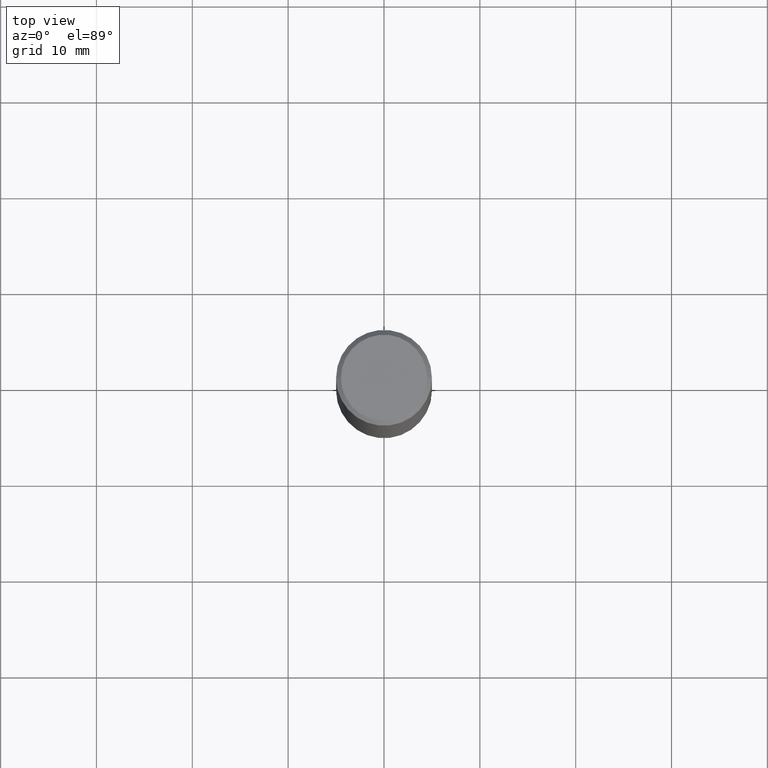
[diagram: clean part render]
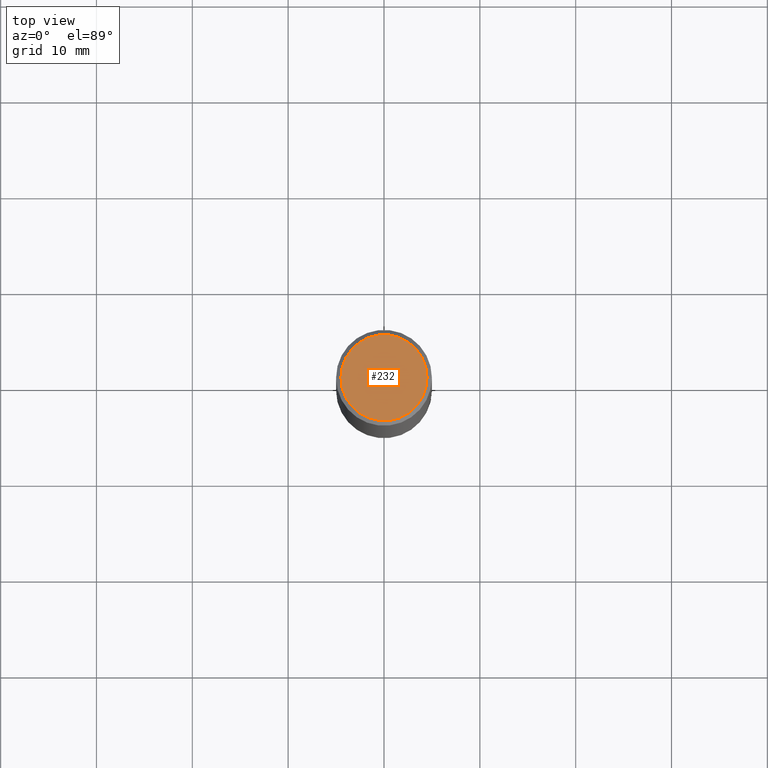
[diagram: same view with one face highlighted and labeled with its STEP entity id]
A machine part, top view. The second image highlights one B-rep face of the part: STEP entity #232.
In plain terms, the highlighted planar face has unit normal (0, -0, -1).
Its self-contained STEP definition (entity closure, byte-faithful):
#13 = ORIENTED_EDGE ( 'NONE', *, *, #112, .T. ) ;
#36 = DIRECTION ( 'NONE',  ( 2.438088387897960049E-29, -3.491481338843145188E-15, -1.000000000000000000 ) ) ;
#59 = CARTESIAN_POINT ( 'NONE',  ( 0.1768499999999997851, -1.316798864272040563E-15, 4.268512490109333727E-18 ) ) ;
#93 = DIRECTION ( 'NONE',  ( -1.000000000000000000, 6.982962677686265922E-15, -4.876176775795935793E-29 ) ) ;
#112 = EDGE_CURVE ( 'NONE', #164, #326, #360, .T. ) ;
#118 = CARTESIAN_POINT ( 'NONE',  ( -1.043851414335219820E-46, 1.490343170380447200E-32, 4.268512490100411279E-18 ) ) ;
#126 = CARTESIAN_POINT ( 'NONE',  ( -1.043851414335219820E-46, 1.490343170380447200E-32, 4.268512490100411279E-18 ) ) ;
#129 = ORIENTED_EDGE ( 'NONE', *, *, #218, .T. ) ;
#130 = AXIS2_PLACEMENT_3D ( 'NONE', #126, #179, #281 ) ;
#148 = AXIS2_PLACEMENT_3D ( 'NONE', #236, #36, #93 ) ;
#164 = VERTEX_POINT ( 'NONE', #59 ) ;
#179 = DIRECTION ( 'NONE',  ( -2.445468806185136597E-29, 3.491481338843145583E-15, 1.000000000000000000 ) ) ;
#186 = CARTESIAN_POINT ( 'NONE',  ( -0.1768499999999997851, 1.269851762937246069E-15, 4.268512490091652920E-18 ) ) ;
#209 = PLANE ( 'NONE',  #148 ) ;
#215 = EDGE_LOOP ( 'NONE', ( #129, #13 ) ) ;
#218 = EDGE_CURVE ( 'NONE', #326, #164, #256, .T. ) ;
#232 = ADVANCED_FACE ( 'NONE', ( #317 ), #209, .F. ) ;
#236 = CARTESIAN_POINT ( 'NONE',  ( 1.234936949548814617E-15, 0.1768499999999997851, -6.153342185293593634E-16 ) ) ;
#256 = CIRCLE ( 'NONE', #130, 0.1768499999999997851 ) ;
#262 = DIRECTION ( 'NONE',  ( 1.000000000000000000, -6.982962677686266711E-15, 4.875932113059884174E-29 ) ) ;
#281 = DIRECTION ( 'NONE',  ( 1.000000000000000000, -6.982962677686266711E-15, 4.875932113059884174E-29 ) ) ;
#311 = DIRECTION ( 'NONE',  ( -2.445468806185136597E-29, 3.491481338843145583E-15, 1.000000000000000000 ) ) ;
#312 = AXIS2_PLACEMENT_3D ( 'NONE', #118, #311, #262 ) ;
#317 = FACE_OUTER_BOUND ( 'NONE', #215, .T. ) ;
#326 = VERTEX_POINT ( 'NONE', #186 ) ;
#360 = CIRCLE ( 'NONE', #312, 0.1768499999999997851 ) ;